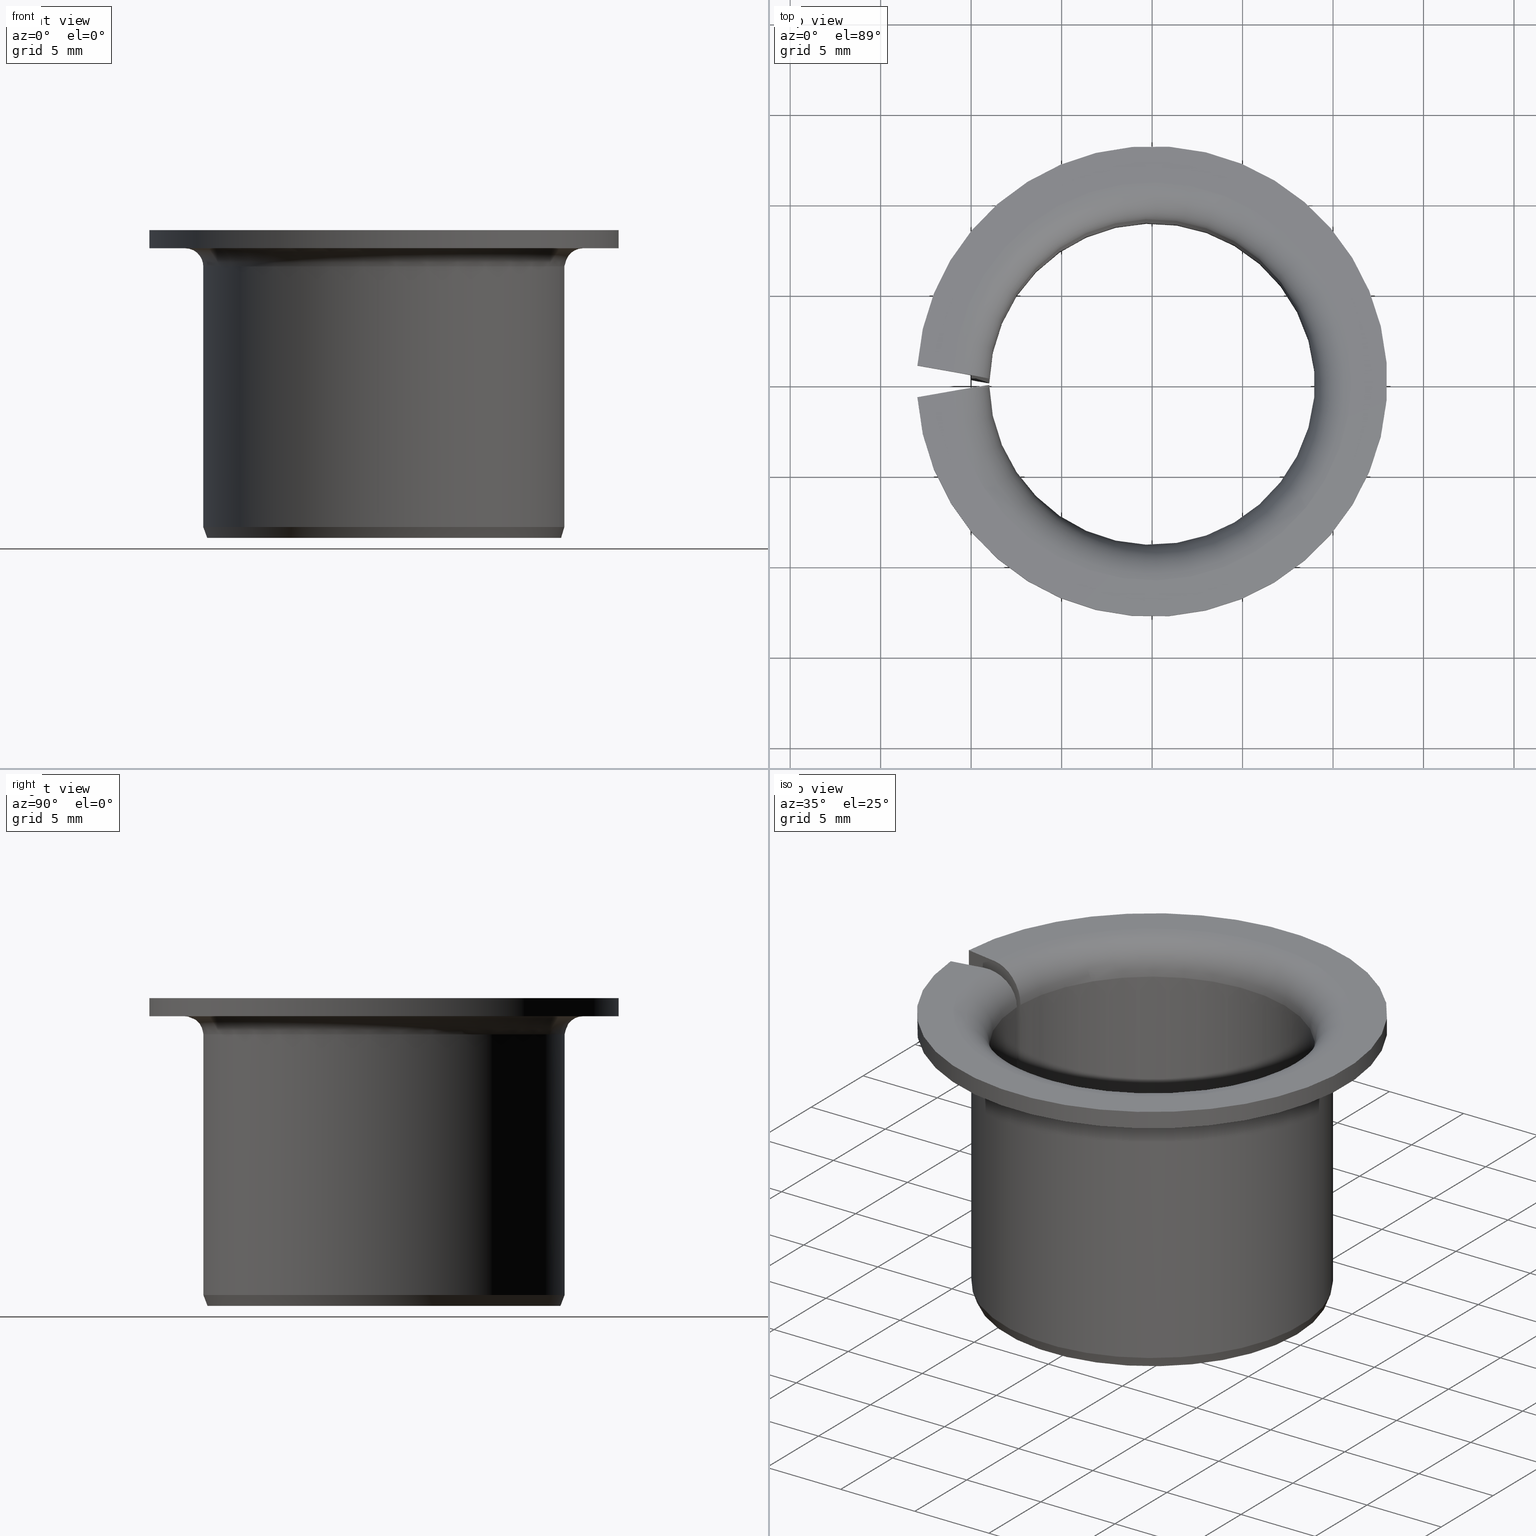
[diagram: canonical four-view strip — front | top / right | iso, engineering-drawing reading convention]
A machine part, canonical four-view strip (front | top / right | iso — engineering-drawing reading convention). The complete STEP part file that produces these views, byte-faithful:
ISO-10303-21;
HEADER;
FILE_DESCRIPTION(('STEP AP203'),'1');
FILE_NAME('410-BM1817F26LMB.stp','2016-09-19T21:06:28',(' '),(' '),'Spatial InterOp 3D',' ',' ');
FILE_SCHEMA(('CONFIG_CONTROL_DESIGN'));
ENDSEC;
DATA;
#1=DESIGN_CONTEXT('',#51,'design');
#2=APPLICATION_PROTOCOL_DEFINITION('INTERNATIONAL STANDARD','config_control_design',1994,#51);
#3=PRODUCT_CATEGORY_RELATIONSHIP('NONE','NONE',#52,#53);
#4=DATE_AND_TIME(#54,#55);
#5=DATE_TIME_ROLE('creation_date');
#6=DATE_TIME_ROLE('classification_date');
#7=PERSON_AND_ORGANIZATION_ROLE('creator');
#8=PERSON_AND_ORGANIZATION_ROLE('design_supplier');
#9=PERSON_AND_ORGANIZATION_ROLE('classification_officer');
#10=PERSON_AND_ORGANIZATION_ROLE('design_owner');
#11=APPROVAL_PERSON_ORGANIZATION(#56,#57,#58);
#12=APPROVAL_DATE_TIME(#4,#57);
#13=CC_DESIGN_APPROVAL(#57,(#59,#60,#61));
#14=CC_DESIGN_DATE_AND_TIME_ASSIGNMENT(#4,#5,(#61));
#15=CC_DESIGN_DATE_AND_TIME_ASSIGNMENT(#4,#6,(#59));
#16=CC_DESIGN_PERSON_AND_ORGANIZATION_ASSIGNMENT(#56,#10,(#62));
#17=CC_DESIGN_PERSON_AND_ORGANIZATION_ASSIGNMENT(#56,#7,(#61));
#18=CC_DESIGN_PERSON_AND_ORGANIZATION_ASSIGNMENT(#56,#7,(#60));
#19=CC_DESIGN_PERSON_AND_ORGANIZATION_ASSIGNMENT(#56,#8,(#60));
#20=CC_DESIGN_SECURITY_CLASSIFICATION(#59,(#60));
#21=CC_DESIGN_PERSON_AND_ORGANIZATION_ASSIGNMENT(#56,#9,(#59));
#22=SHAPE_DEFINITION_REPRESENTATION(#63,#64);
#23=DESIGN_CONTEXT('',#65,'design');
#24=APPLICATION_PROTOCOL_DEFINITION('INTERNATIONAL STANDARD','config_control_design',1994,#65);
#25=PRODUCT_CATEGORY_RELATIONSHIP('NONE','NONE',#66,#67);
#26=DATE_AND_TIME(#68,#69);
#27=DATE_TIME_ROLE('creation_date');
#28=DATE_TIME_ROLE('classification_date');
#29=PERSON_AND_ORGANIZATION_ROLE('creator');
#30=PERSON_AND_ORGANIZATION_ROLE('design_supplier');
#31=PERSON_AND_ORGANIZATION_ROLE('classification_officer');
#32=PERSON_AND_ORGANIZATION_ROLE('design_owner');
#33=APPROVAL_PERSON_ORGANIZATION(#70,#71,#72);
#34=APPROVAL_DATE_TIME(#26,#71);
#35=CC_DESIGN_APPROVAL(#71,(#73,#74,#75));
#36=CC_DESIGN_DATE_AND_TIME_ASSIGNMENT(#26,#27,(#75));
#37=CC_DESIGN_DATE_AND_TIME_ASSIGNMENT(#26,#28,(#73));
#38=CC_DESIGN_PERSON_AND_ORGANIZATION_ASSIGNMENT(#70,#32,(#76));
#39=CC_DESIGN_PERSON_AND_ORGANIZATION_ASSIGNMENT(#70,#29,(#75));
#40=CC_DESIGN_PERSON_AND_ORGANIZATION_ASSIGNMENT(#70,#29,(#74));
#41=CC_DESIGN_PERSON_AND_ORGANIZATION_ASSIGNMENT(#70,#30,(#74));
#42=CC_DESIGN_SECURITY_CLASSIFICATION(#73,(#74));
#43=CC_DESIGN_PERSON_AND_ORGANIZATION_ASSIGNMENT(#70,#31,(#73));
#44=CONTEXT_DEPENDENT_SHAPE_REPRESENTATION(#77,#78);
#45=SHAPE_DEFINITION_REPRESENTATION(#79,#80);
#46=SHAPE_REPRESENTATION_RELATIONSHIP('NONE','NONE',#80,#81);
#47= (GEOMETRIC_REPRESENTATION_CONTEXT(3)GLOBAL_UNCERTAINTY_ASSIGNED_CONTEXT((#84))GLOBAL_UNIT_ASSIGNED_CONTEXT((#86,#87,#88))REPRESENTATION_CONTEXT('NONE','WORKSPACE'));
#51=APPLICATION_CONTEXT('CONFIGURATION CONTROLLED 3D DESIGNS OF MECHANICAL PARTS AND ASSEMBLIES');
#52=PRODUCT_CATEGORY('part','NONE');
#53=PRODUCT_RELATED_PRODUCT_CATEGORY('detail',' ',(#62));
#54=CALENDAR_DATE(2016,19,8);
#55=LOCAL_TIME(23,6,28.0,#90);
#56=PERSON_AND_ORGANIZATION(#91,#92);
#57=APPROVAL(#93,'SOLID MODEL');
#58=APPROVAL_ROLE('APPROVED');
#59=SECURITY_CLASSIFICATION('','',#94);
#60=PRODUCT_DEFINITION_FORMATION_WITH_SPECIFIED_SOURCE(' ','NONE',#62,.NOT_KNOWN.);
#61=PRODUCT_DEFINITION('NONE','NONE',#60,#1);
#62=PRODUCT('','','PART--DESC',(#95));
#63=PRODUCT_DEFINITION_SHAPE('NONE','NONE',#61);
#64=SHAPE_REPRESENTATION('',(#96,#97),#98);
#65=APPLICATION_CONTEXT('CONFIGURATION CONTROLLED 3D DESIGNS OF MECHANICAL PARTS AND ASSEMBLIES');
#66=PRODUCT_CATEGORY('part','NONE');
#67=PRODUCT_RELATED_PRODUCT_CATEGORY('detail',' ',(#76));
#68=CALENDAR_DATE(2016,19,8);
#69=LOCAL_TIME(23,6,28.0,#99);
#70=PERSON_AND_ORGANIZATION(#100,#101);
#71=APPROVAL(#102,'SOLID MODEL');
#72=APPROVAL_ROLE('APPROVED');
#73=SECURITY_CLASSIFICATION('','',#103);
#74=PRODUCT_DEFINITION_FORMATION_WITH_SPECIFIED_SOURCE(' ','NONE',#76,.NOT_KNOWN.);
#75=PRODUCT_DEFINITION('410-BM1817F26LMB','410-BM1817F26LMB',#74,#23);
#76=PRODUCT('410-BM1817F26LMB','410-BM1817F26LMB','PART-410-BM1817F26LMB-DESC',(#104));
#77=(REPRESENTATION_RELATIONSHIP('','',#80,#64)REPRESENTATION_RELATIONSHIP_WITH_TRANSFORMATION(#107)SHAPE_REPRESENTATION_RELATIONSHIP());
#78=PRODUCT_DEFINITION_SHAPE('NAUO-PROD-DEF','NAUO-PROD-DEF',#109);
#79=PRODUCT_DEFINITION_SHAPE('NONE','NONE',#75);
#80=SHAPE_REPRESENTATION('410-BM1817F26LMB',(#96),#98);
#81=ADVANCED_BREP_SHAPE_REPRESENTATION('',(#110),#47);
#84=UNCERTAINTY_MEASURE_WITH_UNIT(LENGTH_MEASURE(1.0E-006),#86,'','');
#86= (CONVERSION_BASED_UNIT('METRE',#113)LENGTH_UNIT()NAMED_UNIT(#116));
#87= (NAMED_UNIT(#118)PLANE_ANGLE_UNIT()SI_UNIT($,.RADIAN.));
#88= (NAMED_UNIT(#118)SOLID_ANGLE_UNIT()SI_UNIT($,.STERADIAN.));
#90=COORDINATED_UNIVERSAL_TIME_OFFSET(1,0,.AHEAD.);
#91=PERSON('','UNSPECIFIED',$,$,$,$);
#92=ORGANIZATION('UNSPECIFIED','UNSPECIFIED','UNSPECIFIED');
#93=APPROVAL_STATUS('approved');
#94=SECURITY_CLASSIFICATION_LEVEL('unclassified');
#95=MECHANICAL_CONTEXT('',#51,'mechanical');
#96=AXIS2_PLACEMENT_3D('',#124,#125,#126);
#97=AXIS2_PLACEMENT_3D('',#127,#128,#129);
#98= (GEOMETRIC_REPRESENTATION_CONTEXT(3)GLOBAL_UNCERTAINTY_ASSIGNED_CONTEXT((#132))GLOBAL_UNIT_ASSIGNED_CONTEXT((#134,#135,#136))REPRESENTATION_CONTEXT('NONE','WORKSPACE'));
#99=COORDINATED_UNIVERSAL_TIME_OFFSET(1,0,.AHEAD.);
#100=PERSON('','UNSPECIFIED',$,$,$,$);
#101=ORGANIZATION('UNSPECIFIED','UNSPECIFIED','UNSPECIFIED');
#102=APPROVAL_STATUS('approved');
#103=SECURITY_CLASSIFICATION_LEVEL('unclassified');
#104=MECHANICAL_CONTEXT('',#65,'mechanical');
#107=ITEM_DEFINED_TRANSFORMATION('','',#96,#97);
#109=NEXT_ASSEMBLY_USAGE_OCCURRENCE('410-BM1817F26LMB','410-BM1817F26LMB','410-BM1817F26LMB',#61,#75,$);
#110=MANIFOLD_SOLID_BREP('',#138);
#113=LENGTH_MEASURE_WITH_UNIT(LENGTH_MEASURE(1.0),#139);
#116=DIMENSIONAL_EXPONENTS(1.0,0.0,0.0,0.0,0.0,0.0,0.0);
#118=DIMENSIONAL_EXPONENTS(0.0,0.0,0.0,0.0,0.0,0.0,0.0);
#124=CARTESIAN_POINT('',(0.0,0.0,0.0));
#125=DIRECTION('',(0.0,0.0,1.0));
#126=DIRECTION('',(1.0,0.0,0.0));
#127=CARTESIAN_POINT('',(0.0,0.0,0.0));
#128=DIRECTION('',(0.0,0.0,1.0));
#129=DIRECTION('',(-1.0,-7.6571373978539E-016,0.0));
#132=UNCERTAINTY_MEASURE_WITH_UNIT(LENGTH_MEASURE(1.0E-006),#134,'','');
#134= (CONVERSION_BASED_UNIT('METRE',#142)LENGTH_UNIT()NAMED_UNIT(#145));
#135= (NAMED_UNIT(#147)PLANE_ANGLE_UNIT()SI_UNIT($,.RADIAN.));
#136= (NAMED_UNIT(#147)SOLID_ANGLE_UNIT()SI_UNIT($,.STERADIAN.));
#138=CLOSED_SHELL('',(#153,#154,#155,#156,#157,#158,#159,#160,#161,#162,#163,#164));
#139= (NAMED_UNIT(#116)LENGTH_UNIT()SI_UNIT($,.METRE.));
#142=LENGTH_MEASURE_WITH_UNIT(LENGTH_MEASURE(1.0),#166);
#145=DIMENSIONAL_EXPONENTS(1.0,0.0,0.0,0.0,0.0,0.0,0.0);
#147=DIMENSIONAL_EXPONENTS(0.0,0.0,0.0,0.0,0.0,0.0,0.0);
#153=ADVANCED_FACE('',(#167),#168,.F.);
#154=ADVANCED_FACE('',(#169),#170,.F.);
#155=ADVANCED_FACE('',(#171),#172,.T.);
#156=ADVANCED_FACE('',(#173),#174,.F.);
#157=ADVANCED_FACE('',(#175),#176,.T.);
#158=ADVANCED_FACE('',(#177),#178,.T.);
#159=ADVANCED_FACE('',(#179),#180,.T.);
#160=ADVANCED_FACE('',(#181),#182,.T.);
#161=ADVANCED_FACE('',(#183),#184,.F.);
#162=ADVANCED_FACE('',(#185),#186,.T.);
#163=ADVANCED_FACE('',(#187),#188,.T.);
#164=ADVANCED_FACE('',(#189),#190,.T.);
#166= (NAMED_UNIT(#145)LENGTH_UNIT()SI_UNIT($,.METRE.));
#167=FACE_OUTER_BOUND('',#192,.T.);
#168=PLANE('',#193);
#169=FACE_OUTER_BOUND('',#194,.T.);
#170=CONICAL_SURFACE('',#195,0.009,0.5235987755983);
#171=FACE_OUTER_BOUND('',#196,.T.);
#172=TOROIDAL_SURFACE('',#197,0.011,0.002);
#173=FACE_OUTER_BOUND('',#198,.T.);
#174=TOROIDAL_SURFACE('',#199,0.011,0.001);
#175=FACE_OUTER_BOUND('',#200,.T.);
#176=PLANE('',#201);
#177=FACE_OUTER_BOUND('',#202,.T.);
#178=CYLINDRICAL_SURFACE('',#203,0.013);
#179=FACE_OUTER_BOUND('',#204,.T.);
#180=PLANE('',#205);
#181=FACE_OUTER_BOUND('',#206,.T.);
#182=CYLINDRICAL_SURFACE('',#207,0.01);
#183=FACE_OUTER_BOUND('',#208,.T.);
#184=CYLINDRICAL_SURFACE('',#209,0.009);
#185=FACE_OUTER_BOUND('',#210,.T.);
#186=PLANE('',#211);
#187=FACE_OUTER_BOUND('',#212,.T.);
#188=CONICAL_SURFACE('',#213,0.00978161785944028,0.349065850398864);
#189=FACE_OUTER_BOUND('',#214,.T.);
#190=PLANE('',#215);
#192=EDGE_LOOP('',(#216,#217,#218,#219,#220,#221,#222,#223,#224,#225));
#193=AXIS2_PLACEMENT_3D('',#226,#227,#228);
#194=EDGE_LOOP('',(#229,#230,#231,#232));
#195=AXIS2_PLACEMENT_3D('',#233,#234,#235);
#196=EDGE_LOOP('',(#236,#237,#238,#239));
#197=AXIS2_PLACEMENT_3D('',#240,#241,#242);
#198=EDGE_LOOP('',(#243,#244,#245,#246));
#199=AXIS2_PLACEMENT_3D('',#247,#248,#249);
#200=EDGE_LOOP('',(#250,#251,#252,#253));
#201=AXIS2_PLACEMENT_3D('',#254,#255,#256);
#202=EDGE_LOOP('',(#257,#258,#259,#260));
#203=AXIS2_PLACEMENT_3D('',#261,#262,#263);
#204=EDGE_LOOP('',(#264,#265,#266,#267));
#205=AXIS2_PLACEMENT_3D('',#268,#269,#270);
#206=EDGE_LOOP('',(#271,#272,#273,#274));
#207=AXIS2_PLACEMENT_3D('',#275,#276,#277);
#208=EDGE_LOOP('',(#278,#279,#280,#281));
#209=AXIS2_PLACEMENT_3D('',#282,#283,#284);
#210=EDGE_LOOP('',(#285,#286,#287,#288));
#211=AXIS2_PLACEMENT_3D('',#289,#290,#291);
#212=EDGE_LOOP('',(#292,#293,#294,#295));
#213=AXIS2_PLACEMENT_3D('',#296,#297,#298);
#214=EDGE_LOOP('',(#299,#300,#301,#302,#303,#304,#305,#306,#307,#308));
#215=AXIS2_PLACEMENT_3D('',#309,#310,#311);
#216=ORIENTED_EDGE('',*,*,#312,.T.);
#217=ORIENTED_EDGE('',*,*,#313,.F.);
#218=ORIENTED_EDGE('',*,*,#314,.T.);
#219=ORIENTED_EDGE('',*,*,#315,.T.);
#220=ORIENTED_EDGE('',*,*,#316,.T.);
#221=ORIENTED_EDGE('',*,*,#317,.T.);
#222=ORIENTED_EDGE('',*,*,#318,.T.);
#223=ORIENTED_EDGE('',*,*,#319,.F.);
#224=ORIENTED_EDGE('',*,*,#320,.T.);
#225=ORIENTED_EDGE('',*,*,#321,.T.);
#226=CARTESIAN_POINT('',(-0.00270955855681633,0.00188838412504393,-1.10968941961653E-018));
#227=DIRECTION('',(-0.173648177666931,-0.984807753012208,1.020425574104E-016));
#228=DIRECTION('',(-1.77195041387892E-017,-1.00492301674956E-016,-1.0));
#229=ORIENTED_EDGE('',*,*,#322,.T.);
#230=ORIENTED_EDGE('',*,*,#323,.T.);
#231=ORIENTED_EDGE('',*,*,#324,.F.);
#232=ORIENTED_EDGE('',*,*,#320,.F.);
#233=CARTESIAN_POINT('',(0.0,0.0,0.0003));
#234=DIRECTION('',(0.0,-6.12323399573677E-017,-1.0));
#235=DIRECTION('',(0.0,1.0,-6.12323399573677E-017));
#236=ORIENTED_EDGE('',*,*,#325,.T.);
#237=ORIENTED_EDGE('',*,*,#326,.T.);
#238=ORIENTED_EDGE('',*,*,#327,.F.);
#239=ORIENTED_EDGE('',*,*,#312,.F.);
#240=CARTESIAN_POINT('',(0.0,0.0,0.015));
#241=DIRECTION('',(0.0,-6.12323399573677E-017,-1.0));
#242=DIRECTION('',(0.0,1.0,-6.12323399573677E-017));
#243=ORIENTED_EDGE('',*,*,#328,.T.);
#244=ORIENTED_EDGE('',*,*,#329,.T.);
#245=ORIENTED_EDGE('',*,*,#330,.F.);
#246=ORIENTED_EDGE('',*,*,#316,.F.);
#247=CARTESIAN_POINT('',(0.0,0.0,0.015));
#248=DIRECTION('',(0.0,-6.12323399573677E-017,-1.0));
#249=DIRECTION('',(0.0,1.0,-6.12323399573677E-017));
#250=ORIENTED_EDGE('',*,*,#331,.T.);
#251=ORIENTED_EDGE('',*,*,#332,.T.);
#252=ORIENTED_EDGE('',*,*,#328,.F.);
#253=ORIENTED_EDGE('',*,*,#315,.F.);
#254=CARTESIAN_POINT('',(0.011,0.0,0.016));
#255=DIRECTION('',(0.0,-6.12323399573677E-017,-1.0));
#256=DIRECTION('',(0.0,1.0,-6.12323399573677E-017));
#257=ORIENTED_EDGE('',*,*,#333,.T.);
#258=ORIENTED_EDGE('',*,*,#334,.T.);
#259=ORIENTED_EDGE('',*,*,#331,.F.);
#260=ORIENTED_EDGE('',*,*,#314,.F.);
#261=CARTESIAN_POINT('',(0.0,0.0,0.0));
#262=DIRECTION('',(0.0,-6.12323399573677E-017,-1.0));
#263=DIRECTION('',(0.0,1.0,-6.12323399573677E-017));
#264=ORIENTED_EDGE('',*,*,#327,.T.);
#265=ORIENTED_EDGE('',*,*,#335,.F.);
#266=ORIENTED_EDGE('',*,*,#333,.F.);
#267=ORIENTED_EDGE('',*,*,#313,.T.);
#268=CARTESIAN_POINT('',(0.013,0.0,0.017));
#269=DIRECTION('',(0.0,6.12323399573677E-017,1.0));
#270=DIRECTION('',(0.0,-1.0,6.12323399573677E-017));
#271=ORIENTED_EDGE('',*,*,#330,.T.);
#272=ORIENTED_EDGE('',*,*,#336,.T.);
#273=ORIENTED_EDGE('',*,*,#337,.F.);
#274=ORIENTED_EDGE('',*,*,#317,.F.);
#275=CARTESIAN_POINT('',(0.0,0.0,0.0));
#276=DIRECTION('',(0.0,-6.12323399573677E-017,-1.0));
#277=DIRECTION('',(0.0,1.0,-6.12323399573677E-017));
#278=ORIENTED_EDGE('',*,*,#324,.T.);
#279=ORIENTED_EDGE('',*,*,#338,.T.);
#280=ORIENTED_EDGE('',*,*,#325,.F.);
#281=ORIENTED_EDGE('',*,*,#321,.F.);
#282=CARTESIAN_POINT('',(0.0,0.0,0.0));
#283=DIRECTION('',(0.0,-6.12323399573677E-017,-1.0));
#284=DIRECTION('',(0.0,1.0,-6.12323399573677E-017));
#285=ORIENTED_EDGE('',*,*,#339,.T.);
#286=ORIENTED_EDGE('',*,*,#340,.F.);
#287=ORIENTED_EDGE('',*,*,#322,.F.);
#288=ORIENTED_EDGE('',*,*,#319,.T.);
#289=CARTESIAN_POINT('',(0.00917320508075689,0.0,-1.65858387043266E-020));
#290=DIRECTION('',(0.0,-6.12323399573677E-017,-1.0));
#291=DIRECTION('',(0.0,1.0,-6.12323399573677E-017));
#292=ORIENTED_EDGE('',*,*,#337,.T.);
#293=ORIENTED_EDGE('',*,*,#341,.T.);
#294=ORIENTED_EDGE('',*,*,#339,.F.);
#295=ORIENTED_EDGE('',*,*,#318,.F.);
#296=CARTESIAN_POINT('',(0.0,0.0,-3.31716774086531E-020));
#297=DIRECTION('',(-0.0,6.12323399573677E-017,1.0));
#298=DIRECTION('',(0.0,-1.0,6.12323399573677E-017));
#299=ORIENTED_EDGE('',*,*,#338,.F.);
#300=ORIENTED_EDGE('',*,*,#323,.F.);
#301=ORIENTED_EDGE('',*,*,#340,.T.);
#302=ORIENTED_EDGE('',*,*,#341,.F.);
#303=ORIENTED_EDGE('',*,*,#336,.F.);
#304=ORIENTED_EDGE('',*,*,#329,.F.);
#305=ORIENTED_EDGE('',*,*,#332,.F.);
#306=ORIENTED_EDGE('',*,*,#334,.F.);
#307=ORIENTED_EDGE('',*,*,#335,.T.);
#308=ORIENTED_EDGE('',*,*,#326,.F.);
#309=CARTESIAN_POINT('',(-0.00270955855681633,-0.00188838412504393,-8.81942426655512E-019));
#310=DIRECTION('',(0.173648177666931,-0.984807753012208,9.83497954644252E-017));
#311=DIRECTION('',(-3.54626435696857E-018,-1.00492301674956E-016,-1.0));
#312=EDGE_CURVE('',#342,#343,#344,.T.);
#313=EDGE_CURVE('',#345,#343,#346,.T.);
#314=EDGE_CURVE('',#345,#347,#348,.T.);
#315=EDGE_CURVE('',#347,#349,#350,.T.);
#316=EDGE_CURVE('',#349,#351,#352,.T.);
#317=EDGE_CURVE('',#351,#353,#354,.T.);
#318=EDGE_CURVE('',#353,#355,#356,.T.);
#319=EDGE_CURVE('',#357,#355,#358,.T.);
#320=EDGE_CURVE('',#357,#359,#360,.T.);
#321=EDGE_CURVE('',#359,#342,#361,.F.);
#322=EDGE_CURVE('',#357,#362,#363,.T.);
#323=EDGE_CURVE('',#362,#364,#365,.T.);
#324=EDGE_CURVE('',#359,#364,#366,.T.);
#325=EDGE_CURVE('',#342,#367,#368,.T.);
#326=EDGE_CURVE('',#367,#369,#370,.T.);
#327=EDGE_CURVE('',#343,#369,#371,.T.);
#328=EDGE_CURVE('',#349,#372,#373,.T.);
#329=EDGE_CURVE('',#372,#374,#375,.T.);
#330=EDGE_CURVE('',#351,#374,#376,.T.);
#331=EDGE_CURVE('',#347,#377,#378,.T.);
#332=EDGE_CURVE('',#377,#372,#379,.T.);
#333=EDGE_CURVE('',#345,#380,#381,.T.);
#334=EDGE_CURVE('',#380,#377,#382,.T.);
#335=EDGE_CURVE('',#380,#369,#383,.T.);
#336=EDGE_CURVE('',#374,#384,#385,.T.);
#337=EDGE_CURVE('',#353,#384,#386,.T.);
#338=EDGE_CURVE('',#364,#367,#387,.F.);
#339=EDGE_CURVE('',#355,#388,#389,.T.);
#340=EDGE_CURVE('',#362,#388,#390,.T.);
#341=EDGE_CURVE('',#384,#388,#391,.T.);
#342=VERTEX_POINT('',#392);
#343=VERTEX_POINT('',#393);
#344=B_SPLINE_CURVE_WITH_KNOTS('',3,(#394,#395,#396,#397,#398,#399,#400,#401,#402,#403,#404,#405,#406,#407),.UNSPECIFIED.,.F.,.F.,(4,2,2,2,2,2,4),(1.97146796340458E-007,0.000392629396224663,0.000785061645652985,0.00117749389508131,0.00156992614450963,0.00235479064336627,0.00313965514222291),.UNSPECIFIED.);
#345=VERTEX_POINT('',#408);
#346=LINE('',#409,#410);
#347=VERTEX_POINT('',#411);
#348=LINE('',#412,#413);
#349=VERTEX_POINT('',#414);
#350=LINE('',#415,#416);
#351=VERTEX_POINT('',#417);
#352=B_SPLINE_CURVE_WITH_KNOTS('',3,(#418,#419,#420,#421,#422,#423,#424,#425),.UNSPECIFIED.,.F.,.F.,(4,2,2,4),(1.28469300528228E-005,0.000405134983641965,0.000797423037231107,0.00158199914440938),.UNSPECIFIED.);
#353=VERTEX_POINT('',#426);
#354=LINE('',#427,#428);
#355=VERTEX_POINT('',#429);
#356=B_SPLINE_CURVE_WITH_KNOTS('',3,(#430,#431,#432,#433),.UNSPECIFIED.,.F.,.F.,(4,4),(2.13080374666438E-007,0.000639470931065652),.UNSPECIFIED.);
#357=VERTEX_POINT('',#434);
#358=LINE('',#435,#436);
#359=VERTEX_POINT('',#437);
#360=B_SPLINE_CURVE_WITH_KNOTS('',3,(#438,#439,#440,#441),.UNSPECIFIED.,.F.,.F.,(4,4),(2.31616691545845E-007,0.000347676640330094),.UNSPECIFIED.);
#361=LINE('',#442,#443);
#362=VERTEX_POINT('',#444);
#363=CIRCLE('',#445,0.00917320508075689);
#364=VERTEX_POINT('',#446);
#365=B_SPLINE_CURVE_WITH_KNOTS('',3,(#447,#448,#449,#450),.UNSPECIFIED.,.F.,.F.,(4,4),(2.3161669154586E-007,0.000347676640330094),.UNSPECIFIED.);
#366=CIRCLE('',#451,0.009);
#367=VERTEX_POINT('',#452);
#368=CIRCLE('',#453,0.009);
#369=VERTEX_POINT('',#454);
#370=B_SPLINE_CURVE_WITH_KNOTS('',3,(#455,#456,#457,#458,#459,#460,#461,#462,#463,#464,#465,#466,#467,#468),.UNSPECIFIED.,.F.,.F.,(4,2,2,2,2,2,4),(1.97146796340458E-007,0.000392629396224663,0.000785061645652985,0.00117749389508131,0.00156992614450963,0.00235479064336627,0.00313965514222291),.UNSPECIFIED.);
#371=CIRCLE('',#469,0.011);
#372=VERTEX_POINT('',#470);
#373=CIRCLE('',#471,0.011);
#374=VERTEX_POINT('',#472);
#375=B_SPLINE_CURVE_WITH_KNOTS('',3,(#473,#474,#475,#476,#477,#478,#479,#480),.UNSPECIFIED.,.F.,.F.,(4,2,2,4),(1.28469300528228E-005,0.000405134983641965,0.000797423037231107,0.00158199914440938),.UNSPECIFIED.);
#376=CIRCLE('',#481,0.01);
#377=VERTEX_POINT('',#482);
#378=CIRCLE('',#483,0.013);
#379=LINE('',#484,#485);
#380=VERTEX_POINT('',#486);
#381=CIRCLE('',#487,0.013);
#382=LINE('',#488,#489);
#383=LINE('',#490,#491);
#384=VERTEX_POINT('',#492);
#385=LINE('',#493,#494);
#386=CIRCLE('',#495,0.01);
#387=LINE('',#496,#497);
#388=VERTEX_POINT('',#498);
#389=CIRCLE('',#499,0.00978161785944028);
#390=LINE('',#500,#501);
#391=B_SPLINE_CURVE_WITH_KNOTS('',3,(#502,#503,#504,#505),.UNSPECIFIED.,.F.,.F.,(4,4),(2.13080374666438E-007,0.000639470931065649),.UNSPECIFIED.);
#392=CARTESIAN_POINT('',(0.00899827848821545,-0.00017602343173324,0.015));
#393=CARTESIAN_POINT('',(0.0109873804139217,-0.000526755768614425,0.017));
#394=CARTESIAN_POINT('',(0.00899827848821545,-0.000176023431733241,0.015));
#395=CARTESIAN_POINT('',(0.00899827848821545,-0.000176023431733241,0.0151327027598317));
#396=CARTESIAN_POINT('',(0.009011313104869,-0.000178321786332455,0.0152631462580258));
#397=CARTESIAN_POINT('',(0.0090623440155144,-0.000187319912729362,0.0155197067013958));
#398=CARTESIAN_POINT('',(0.00910098482158335,-0.00019413332939564,0.0156471812173767));
#399=CARTESIAN_POINT('',(0.00920156248713464,-0.000211867885489005,0.0158897375650331));
#400=CARTESIAN_POINT('',(0.00926305979009853,-0.000222711519242341,0.0160047109125508));
#401=CARTESIAN_POINT('',(0.00940821471688992,-0.000248306249218426,0.0162221923048572));
#402=CARTESIAN_POINT('',(0.00949246000467102,-0.000263160966451783,0.0163248593110095));
#403=CARTESIAN_POINT('',(0.00976805187156391,-0.000311755248248816,0.016600731564796));
#404=CARTESIAN_POINT('',(0.00998965439959793,-0.000350829752934417,0.0167489639091345));
#405=CARTESIAN_POINT('',(0.0104665012420696,-0.00043491071692781,0.0169473713973998));
#406=CARTESIAN_POINT('',(0.0107262661630752,-0.000480714281142692,0.017));
#407=CARTESIAN_POINT('',(0.0109873804139217,-0.000526755768614425,0.017));
#408=CARTESIAN_POINT('',(0.0129704235998045,-0.000876419786195622,0.017));
#409=CARTESIAN_POINT('',(0.0158784620240977,-0.00138918542133544,0.017));
#410=VECTOR('',#506,1.0);
#411=CARTESIAN_POINT('',(0.0129704235998045,-0.000876419786195621,0.016));
#412=CARTESIAN_POINT('',(0.0129704235998045,-0.000876419786195623,-4.32002406307949E-021));
#413=VECTOR('',#507,1.0);
#414=CARTESIAN_POINT('',(0.0109873804139217,-0.000526755768614425,0.016));
#415=CARTESIAN_POINT('',(0.0109095389311789,-0.0005130302149885,0.016));
#416=VECTOR('',#508,1.0);
#417=CARTESIAN_POINT('',(0.00999381822879573,-0.00035156394836505,0.015));
#418=CARTESIAN_POINT('',(0.0109873804139217,-0.000526755768614425,0.016));
#419=CARTESIAN_POINT('',(0.0108570272527666,-0.000503770989282138,0.016));
#420=CARTESIAN_POINT('',(0.0107285426564671,-0.00048111568834909,0.0159742050190872));
#421=CARTESIAN_POINT('',(0.0104888505793432,-0.000438851508090099,0.0158746681381106));
#422=CARTESIAN_POINT('',(0.0103785967846507,-0.000419410789360319,0.0158008061623736));
#423=CARTESIAN_POINT('',(0.0101031235107226,-0.000370837418702712,0.0155250309862322));
#424=CARTESIAN_POINT('',(0.00999381822879254,-0.000351563948364488,0.0152653419611276));
#425=CARTESIAN_POINT('',(0.00999381822879243,-0.00035156394836447,0.0150000000000004));
#426=CARTESIAN_POINT('',(0.00999381822879574,-0.000351563948365052,0.0006));
#427=CARTESIAN_POINT('',(0.00999381822879573,-0.000351563948365051,-3.64581751537301E-020));
#428=VECTOR('',#509,1.0);
#429=CARTESIAN_POINT('',(0.00977660035524844,-0.000313262576566544,6.43083039248804E-019));
#430=CARTESIAN_POINT('',(0.00999381822879574,-0.000351563948365053,0.000600000000000001));
#431=CARTESIAN_POINT('',(0.00992142628610994,-0.000338799295683647,0.000399994768914258));
#432=CARTESIAN_POINT('',(0.00984902064639177,-0.000326032227845877,0.000199994648984621));
#433=CARTESIAN_POINT('',(0.00977660035524844,-0.000313262576566546,-1.81468546642966E-019));
#434=CARTESIAN_POINT('',(0.00917088144900545,-0.000206457990670684,6.43083039248804E-019));
#435=CARTESIAN_POINT('',(0.008,0.0,6.43083039248804E-019));
#436=VECTOR('',#510,1.0);
#437=CARTESIAN_POINT('',(0.00899827848821545,-0.000176023431733241,0.0003));
#438=CARTESIAN_POINT('',(0.00917088144900545,-0.000206457990670685,-1.54455125412277E-018));
#439=CARTESIAN_POINT('',(0.00911335681991258,-0.000196314846506366,0.000100005748456389));
#440=CARTESIAN_POINT('',(0.009055822688943,-0.000186170026904813,0.000200005862075899));
#441=CARTESIAN_POINT('',(0.00899827848821545,-0.000176023431733242,0.000299999999999999));
#442=CARTESIAN_POINT('',(0.00899827848821545,-0.000176023431733241,-4.72069317444211E-020));
#443=VECTOR('',#511,1.0);
#444=CARTESIAN_POINT('',(0.00917088144900545,0.000206457990670684,6.18183345418276E-019));
#445=AXIS2_PLACEMENT_3D('',#512,#513,#514);
#446=CARTESIAN_POINT('',(0.00899827848821545,0.000176023431733242,0.0003));
#447=CARTESIAN_POINT('',(0.00917088144900545,0.000206457990670685,-1.5597946929146E-018));
#448=CARTESIAN_POINT('',(0.00911335681991258,0.000196314846506366,0.000100005748456389));
#449=CARTESIAN_POINT('',(0.009055822688943,0.000186170026904813,0.000200005862075899));
#450=CARTESIAN_POINT('',(0.00899827848821545,0.000176023431733242,0.000299999999999999));
#451=AXIS2_PLACEMENT_3D('',#515,#516,#517);
#452=CARTESIAN_POINT('',(0.00899827848821545,0.000176023431733242,0.015));
#453=AXIS2_PLACEMENT_3D('',#518,#519,#520);
#454=CARTESIAN_POINT('',(0.0109873804139217,0.00052675576861443,0.017));
#455=CARTESIAN_POINT('',(0.00899827848821545,0.000176023431733244,0.015));
#456=CARTESIAN_POINT('',(0.00899827848821545,0.000176023431733244,0.0151327027598317));
#457=CARTESIAN_POINT('',(0.009011313104869,0.000178321786332458,0.0152631462580258));
#458=CARTESIAN_POINT('',(0.0090623440155144,0.000187319912729365,0.0155197067013958));
#459=CARTESIAN_POINT('',(0.00910098482158335,0.000194133329395643,0.0156471812173767));
#460=CARTESIAN_POINT('',(0.00920156248713464,0.000211867885489008,0.0158897375650331));
#461=CARTESIAN_POINT('',(0.00926305979009853,0.000222711519242344,0.0160047109125508));
#462=CARTESIAN_POINT('',(0.00940821471688992,0.000248306249218429,0.0162221923048572));
#463=CARTESIAN_POINT('',(0.00949246000467102,0.000263160966451787,0.0163248593110095));
#464=CARTESIAN_POINT('',(0.00976805187156391,0.000311755248248819,0.016600731564796));
#465=CARTESIAN_POINT('',(0.00998965439959793,0.00035082975293442,0.0167489639091345));
#466=CARTESIAN_POINT('',(0.0104665012420696,0.000434910716927813,0.0169473713973998));
#467=CARTESIAN_POINT('',(0.0107262661630752,0.000480714281142696,0.017));
#468=CARTESIAN_POINT('',(0.0109873804139217,0.000526755768614428,0.017));
#469=AXIS2_PLACEMENT_3D('',#521,#522,#523);
#470=CARTESIAN_POINT('',(0.0109873804139217,0.000526755768614429,0.016));
#471=AXIS2_PLACEMENT_3D('',#524,#525,#526);
#472=CARTESIAN_POINT('',(0.00999381822879573,0.000351563948365053,0.015));
#473=CARTESIAN_POINT('',(0.0109873804139217,0.000526755768614428,0.016));
#474=CARTESIAN_POINT('',(0.0108570272527666,0.000503770989282141,0.016));
#475=CARTESIAN_POINT('',(0.0107285426564671,0.000481115688349094,0.0159742050190872));
#476=CARTESIAN_POINT('',(0.0104888505793432,0.000438851508090102,0.0158746681381106));
#477=CARTESIAN_POINT('',(0.0103785967846507,0.000419410789360322,0.0158008061623736));
#478=CARTESIAN_POINT('',(0.0101031235107226,0.000370837418702714,0.0155250309862322));
#479=CARTESIAN_POINT('',(0.00999381822879254,0.000351563948364491,0.0152653419611276));
#480=CARTESIAN_POINT('',(0.00999381822879243,0.000351563948364473,0.0150000000000004));
#481=AXIS2_PLACEMENT_3D('',#527,#528,#529);
#482=CARTESIAN_POINT('',(0.0129704235998045,0.000876419786195625,0.016));
#483=AXIS2_PLACEMENT_3D('',#530,#531,#532);
#484=CARTESIAN_POINT('',(0.0109095389311789,0.000513030214988504,0.016));
#485=VECTOR('',#533,1.0);
#486=CARTESIAN_POINT('',(0.0129704235998045,0.000876419786195627,0.017));
#487=AXIS2_PLACEMENT_3D('',#534,#535,#536);
#488=CARTESIAN_POINT('',(0.0129704235998045,0.000876419786195623,-8.09906996731578E-022));
#489=VECTOR('',#537,1.0);
#490=CARTESIAN_POINT('',(0.0158784620240977,0.00138918542133544,0.017));
#491=VECTOR('',#538,1.0);
#492=CARTESIAN_POINT('',(0.00999381822879574,0.000351563948365053,0.0006));
#493=CARTESIAN_POINT('',(0.00999381822879573,0.000351563948365052,3.1328244093919E-020));
#494=VECTOR('',#539,1.0);
#495=AXIS2_PLACEMENT_3D('',#540,#541,#542);
#496=CARTESIAN_POINT('',(0.00899827848821545,0.000176023431733241,4.207700068461E-020));
#497=VECTOR('',#543,1.0);
#498=CARTESIAN_POINT('',(0.00977660035524845,0.000313262576566544,-5.23534779928966E-020));
#499=AXIS2_PLACEMENT_3D('',#544,#545,#546);
#500=CARTESIAN_POINT('',(0.008,0.0,6.43083039248804E-019));
#501=VECTOR('',#547,1.0);
#502=CARTESIAN_POINT('',(0.00999381822879574,0.000351563948365054,0.000600000000000001));
#503=CARTESIAN_POINT('',(0.00992142628610994,0.000338799295683647,0.000399994768914259));
#504=CARTESIAN_POINT('',(0.00984902064639177,0.000326032227845877,0.000199994648984623));
#505=CARTESIAN_POINT('',(0.00977660035524844,0.000313262576566546,2.67959388605933E-018));
#506=DIRECTION('',(-0.984807753012208,0.173648177666931,0.0));
#507=DIRECTION('',(0.0,-6.12323399573677E-017,-1.0));
#508=DIRECTION('',(-0.984807753012208,0.173648177666931,-1.06328842478789E-017));
#509=DIRECTION('',(0.0,-6.12323399573677E-017,-1.0));
#510=DIRECTION('',(0.984807753012208,-0.173648177666931,0.0));
#511=DIRECTION('',(0.0,-6.12323399573677E-017,-1.0));
#512=CARTESIAN_POINT('',(0.0,0.0,0.0));
#513=DIRECTION('',(0.0,-6.12323399573677E-017,-1.0));
#514=DIRECTION('',(0.0,1.0,-6.12323399573677E-017));
#515=CARTESIAN_POINT('',(0.0,0.0,0.0003));
#516=DIRECTION('',(0.0,-6.12323399573677E-017,-1.0));
#517=DIRECTION('',(0.0,1.0,-6.12323399573677E-017));
#518=CARTESIAN_POINT('',(0.0,0.0,0.015));
#519=DIRECTION('',(0.0,-6.12323399573677E-017,-1.0));
#520=DIRECTION('',(0.0,1.0,-6.12323399573677E-017));
#521=CARTESIAN_POINT('',(0.0,0.0,0.017));
#522=DIRECTION('',(0.0,-6.12323399573677E-017,-1.0));
#523=DIRECTION('',(0.0,1.0,-6.12323399573677E-017));
#524=CARTESIAN_POINT('',(0.0,0.0,0.016));
#525=DIRECTION('',(0.0,-6.12323399573677E-017,-1.0));
#526=DIRECTION('',(0.0,1.0,-6.12323399573677E-017));
#527=CARTESIAN_POINT('',(0.0,0.0,0.015));
#528=DIRECTION('',(0.0,-6.12323399573677E-017,-1.0));
#529=DIRECTION('',(0.0,1.0,-6.12323399573677E-017));
#530=CARTESIAN_POINT('',(0.0,0.0,0.016));
#531=DIRECTION('',(0.0,-6.12323399573677E-017,-1.0));
#532=DIRECTION('',(0.0,1.0,-6.12323399573677E-017));
#533=DIRECTION('',(-0.984807753012208,-0.173648177666931,1.06328842478789E-017));
#534=CARTESIAN_POINT('',(0.0,0.0,0.017));
#535=DIRECTION('',(0.0,-6.12323399573677E-017,-1.0));
#536=DIRECTION('',(0.0,1.0,-6.12323399573677E-017));
#537=DIRECTION('',(0.0,-6.12323399573677E-017,-1.0));
#538=DIRECTION('',(-0.984807753012208,-0.173648177666931,2.0942693688385E-017));
#539=DIRECTION('',(0.0,-6.12323399573677E-017,-1.0));
#540=CARTESIAN_POINT('',(0.0,0.0,0.0006));
#541=DIRECTION('',(0.0,-6.12323399573677E-017,-1.0));
#542=DIRECTION('',(0.0,1.0,-6.12323399573677E-017));
#543=DIRECTION('',(0.0,-6.12323399573677E-017,-1.0));
#544=CARTESIAN_POINT('',(0.0,0.0,-3.31716774086531E-020));
#545=DIRECTION('',(0.0,-6.12323399573677E-017,-1.0));
#546=DIRECTION('',(0.0,1.0,-6.12323399573677E-017));
#547=DIRECTION('',(0.984807753012208,0.173648177666931,-2.0942693688385E-017));
ENDSEC;
END-ISO-10303-21;
